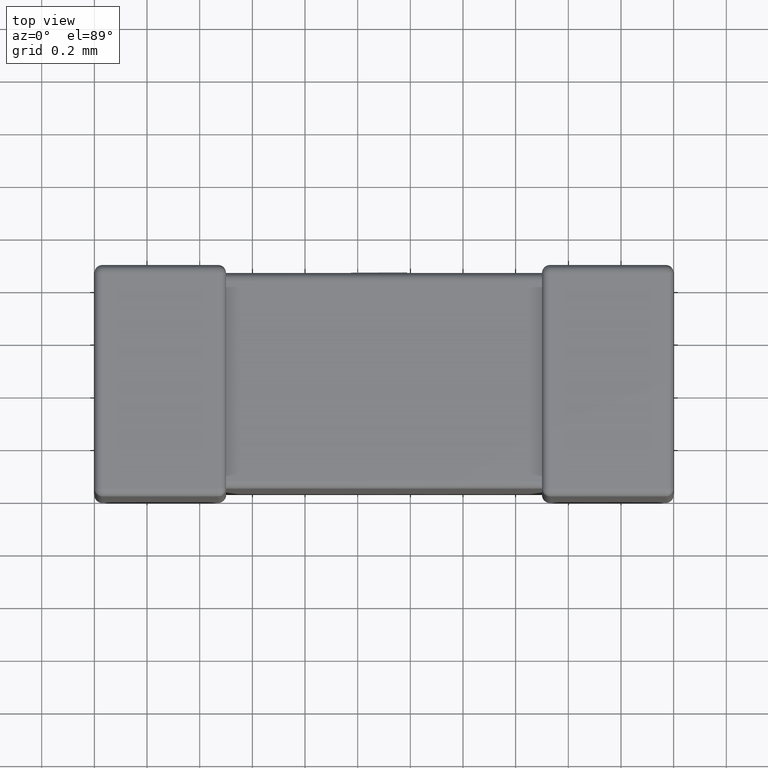
[diagram: clean part render]
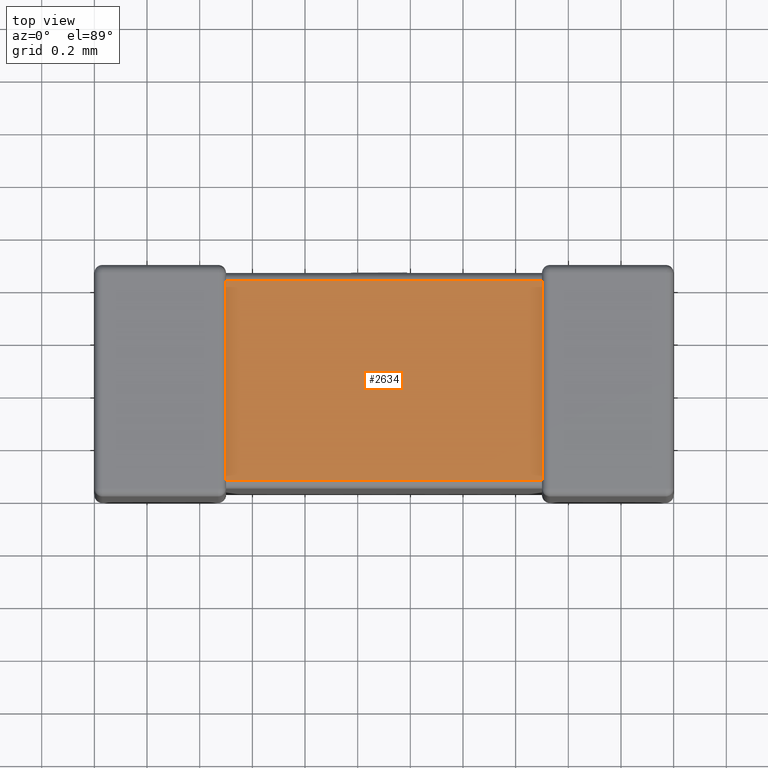
[diagram: same view with one face highlighted and labeled with its STEP entity id]
A machine part, top view. The second image highlights one B-rep face of the part: STEP entity #2634.
In plain terms, the highlighted planar face has unit normal (-0, 0, 1).
Its self-contained STEP definition (entity closure, byte-faithful):
#49 = CARTESIAN_POINT ( 'NONE',  ( 0.5000000000000000000, 0.06031999999999999168, -0.03015999999999999584 ) ) ;
#164 = PLANE ( 'NONE',  #4413 ) ;
#182 = VECTOR ( 'NONE', #2676, 1000.000000000000000 ) ;
#192 = LINE ( 'NONE', #3830, #182 ) ;
#223 = VERTEX_POINT ( 'NONE', #2474 ) ;
#404 = VERTEX_POINT ( 'NONE', #4553 ) ;
#887 = CARTESIAN_POINT ( 'NONE',  ( 0.5000000000000000000, 0.06031999999999999168, -0.03015999999999999584 ) ) ;
#1007 = EDGE_CURVE ( 'NONE', #404, #1509, #2696, .T. ) ;
#1110 = EDGE_LOOP ( 'NONE', ( #4297, #4283, #2537, #1917 ) ) ;
#1174 = EDGE_CURVE ( 'NONE', #2662, #404, #2738, .T. ) ;
#1322 = CARTESIAN_POINT ( 'NONE',  ( 1.700000000000000178, 0.000000000000000000, -0.03015999999999999584 ) ) ;
#1391 = VECTOR ( 'NONE', #4195, 1000.000000000000000 ) ;
#1509 = VERTEX_POINT ( 'NONE', #2258 ) ;
#1917 = ORIENTED_EDGE ( 'NONE', *, *, #2320, .T. ) ;
#2258 = CARTESIAN_POINT ( 'NONE',  ( 1.700000000000000178, 0.8196800000000000752, -0.03015999999999999584 ) ) ;
#2320 = EDGE_CURVE ( 'NONE', #1509, #223, #3462, .T. ) ;
#2370 = CARTESIAN_POINT ( 'NONE',  ( 0.5000000000000000000, 0.8196800000000000752, -0.03015999999999999584 ) ) ;
#2374 = EDGE_CURVE ( 'NONE', #2662, #223, #192, .T. ) ;
#2392 = DIRECTION ( 'NONE',  ( -0.000000000000000000, 1.000000000000000000, -0.000000000000000000 ) ) ;
#2413 = CARTESIAN_POINT ( 'NONE',  ( 0.5000000000000000000, 0.000000000000000000, -0.03015999999999999584 ) ) ;
#2424 = DIRECTION ( 'NONE',  ( -1.000000000000000000, 0.000000000000000000, -0.000000000000000000 ) ) ;
#2436 = FACE_OUTER_BOUND ( 'NONE', #1110, .T. ) ;
#2474 = CARTESIAN_POINT ( 'NONE',  ( 0.5000000000000000000, 0.8196800000000000752, -0.03015999999999999584 ) ) ;
#2537 = ORIENTED_EDGE ( 'NONE', *, *, #1007, .T. ) ;
#2634 = ADVANCED_FACE ( 'NONE', ( #2436 ), #164, .T. ) ;
#2662 = VERTEX_POINT ( 'NONE', #49 ) ;
#2676 = DIRECTION ( 'NONE',  ( -0.000000000000000000, 1.000000000000000000, -0.000000000000000000 ) ) ;
#2696 = LINE ( 'NONE', #1322, #4328 ) ;
#2738 = LINE ( 'NONE', #887, #1391 ) ;
#3462 = LINE ( 'NONE', #2370, #4262 ) ;
#3525 = DIRECTION ( 'NONE',  ( -0.000000000000000000, 0.000000000000000000, 1.000000000000000000 ) ) ;
#3830 = CARTESIAN_POINT ( 'NONE',  ( 0.5000000000000000000, 0.000000000000000000, -0.03015999999999999584 ) ) ;
#4195 = DIRECTION ( 'NONE',  ( 1.000000000000000000, 0.000000000000000000, 0.000000000000000000 ) ) ;
#4243 = DIRECTION ( 'NONE',  ( 1.000000000000000000, 0.000000000000000000, 0.000000000000000000 ) ) ;
#4262 = VECTOR ( 'NONE', #2424, 1000.000000000000000 ) ;
#4283 = ORIENTED_EDGE ( 'NONE', *, *, #1174, .T. ) ;
#4297 = ORIENTED_EDGE ( 'NONE', *, *, #2374, .F. ) ;
#4328 = VECTOR ( 'NONE', #2392, 1000.000000000000000 ) ;
#4413 = AXIS2_PLACEMENT_3D ( 'NONE', #2413, #3525, #4243 ) ;
#4553 = CARTESIAN_POINT ( 'NONE',  ( 1.700000000000000178, 0.06031999999999999168, -0.03015999999999999584 ) ) ;